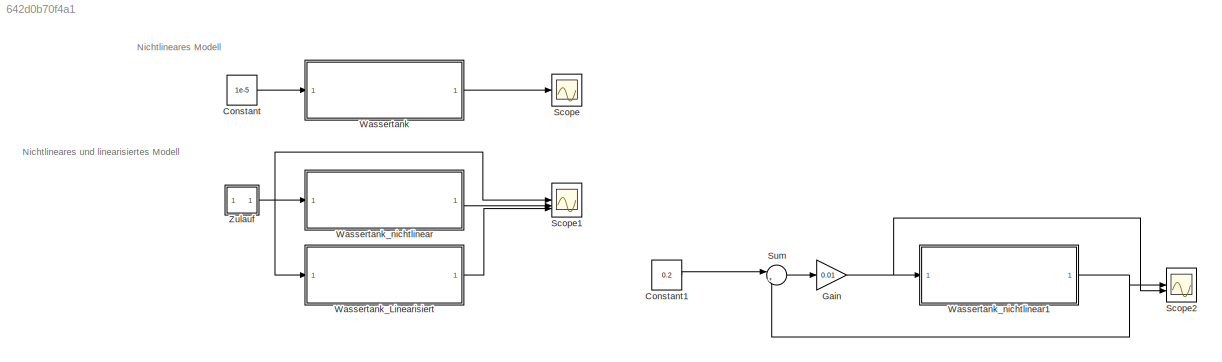
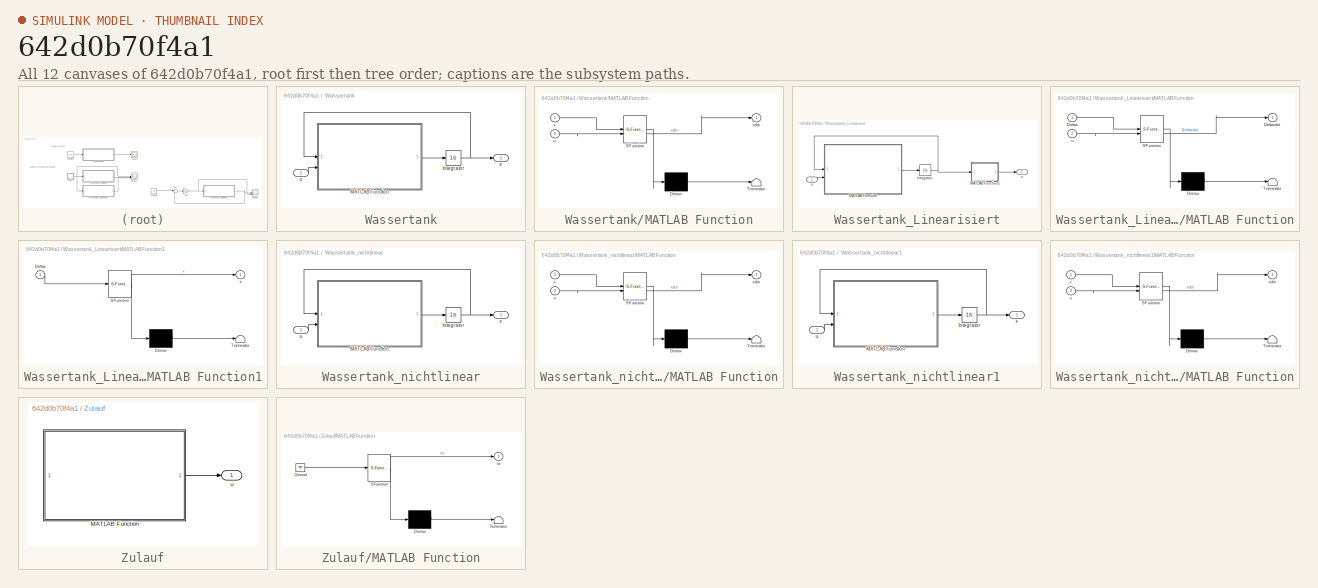
[diagram: thumbnail index - all 12 canvases of the model, root first then tree order]
MODEL slx_642d0b70f4a1
KIND model
CONFIG AbsTol = auto
CONFIG EnableMultiTasking = off
CONFIG FixedStep = auto
CONFIG MaxStep = auto
CONFIG MinStep = auto
CONFIG RelTol = 1e-3
CONFIG SampleTimeConstraint = Unconstrained
CONFIG SolverName = VariableStepAuto
CONFIG StartTime = 0.0
CONFIG StopTime = 10
BLOCK [Constant] Constant
  Value = 1e-5
BLOCK [Constant] Constant1
  Value = 0.2
BLOCK [Gain] Gain
  Gain = 0.01
BLOCK [Scope] Scope
  Floating = off
  NumInputPorts = 1
  ScopeSpecificationString = Simulink.scopes.TimeScopeBlockCfg('CurrentConfiguration', extmgr.ConfigurationSet(extmgr.Configuration('Core','General UI',true,'FigureColor',[1 1 1]),extmgr.Configuration('Core','Source UI',true),extmgr.Configuration('Sources','WiredSimulink',true),extmgr.Configuration('Visuals','Time Domain',true,'SerializedDisplays',{struct('MinYLimReal','0.09141','MaxYLimReal','0.10095','YLabelReal','','MinYLi...<+1502ch>
BLOCK [Scope] Scope1
  Floating = off
  NumInputPorts = 3
  ScopeSpecificationString = Simulink.scopes.TimeScopeBlockCfg('CurrentConfiguration', extmgr.ConfigurationSet(extmgr.Configuration('Core','General UI',true,'FigureColor',[1 1 1]),extmgr.Configuration('Core','Source UI',true),extmgr.Configuration('Sources','WiredSimulink',true,'DataLoggingVariableName','ScopeData1'),extmgr.Configuration('Visuals','Time Domain',true,'SerializedDisplays',{struct('MinYLimReal','0.00001','MaxYLim...<+2375ch>
BLOCK [Scope] Scope2
  Floating = off
  NumInputPorts = 3
  ScopeSpecificationString = Simulink.scopes.TimeScopeBlockCfg('CurrentConfiguration', extmgr.ConfigurationSet(extmgr.Configuration('Core','General UI',true,'FigureColor',[1 1 1]),extmgr.Configuration('Core','Source UI',true),extmgr.Configuration('Sources','WiredSimulink',true,'DataLoggingVariableName','ScopeData1'),extmgr.Configuration('Visuals','Time Domain',true,'SerializedDisplays',{struct('MinYLimReal','0.0875','MaxYLimR...<+2381ch>
BLOCK [Sum] Sum
  Inputs = |+-
BLOCK [SubSystem] Wassertank
BLOCK [Integrator] Wassertank/Integrator
  InitialCondition = x0
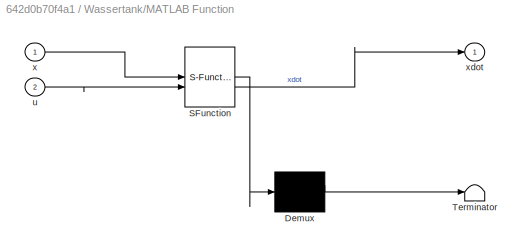
BLOCK [SubSystem] Wassertank/MATLAB Function
  ErrorFcn = Stateflow.Translate.translate
  PermitHierarchicalResolution = ExplicitOnly
  SFBlockType = MATLAB Function
  TreatAsAtomicUnit = on
BLOCK [Demux] Wassertank/MATLAB Function/ Demux 
  Outputs = 1
BLOCK [S-Function] Wassertank/MATLAB Function/ SFunction 
  EnableBusSupport = on
  FunctionName = sf_sfun
  Parameters = dA,dc
  PortCounts = [2 2]
  SFcnIsStateOwnerBlock = off
  SFunctionDeploymentMode = off
  Tag = Stateflow S-Function 2
BLOCK [Terminator] Wassertank/MATLAB Function/ Terminator 
BLOCK [Inport] Wassertank/MATLAB Function/u
  Port = 2
BLOCK [Inport] Wassertank/MATLAB Function/x
BLOCK [Outport] Wassertank/MATLAB Function/xdot
BLOCK [Inport] Wassertank/u
BLOCK [Outport] Wassertank/x
BLOCK [SubSystem] Wassertank_Linearisiert
BLOCK [Integrator] Wassertank_Linearisiert/Integrator
  InitialCondition = x0-xs
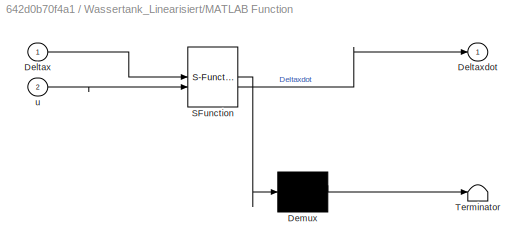
BLOCK [SubSystem] Wassertank_Linearisiert/MATLAB Function
  ErrorFcn = Stateflow.Translate.translate
  PermitHierarchicalResolution = ExplicitOnly
  SFBlockType = MATLAB Function
  TreatAsAtomicUnit = on
BLOCK [Demux] Wassertank_Linearisiert/MATLAB Function/ Demux 
  Outputs = 1
BLOCK [S-Function] Wassertank_Linearisiert/MATLAB Function/ SFunction 
  EnableBusSupport = on
  FunctionName = sf_sfun
  Parameters = dA,dc,xs
  PortCounts = [2 2]
  SFcnIsStateOwnerBlock = off
  SFunctionDeploymentMode = off
  Tag = Stateflow S-Function 4
BLOCK [Terminator] Wassertank_Linearisiert/MATLAB Function/ Terminator 
BLOCK [Inport] Wassertank_Linearisiert/MATLAB Function/Deltax
BLOCK [Outport] Wassertank_Linearisiert/MATLAB Function/Deltaxdot
BLOCK [Inport] Wassertank_Linearisiert/MATLAB Function/u
  Port = 2
BLOCK [SubSystem] Wassertank_Linearisiert/MATLAB Function1
  ErrorFcn = Stateflow.Translate.translate
  PermitHierarchicalResolution = ExplicitOnly
  SFBlockType = MATLAB Function
  TreatAsAtomicUnit = on
BLOCK [Demux] Wassertank_Linearisiert/MATLAB Function1/ Demux 
  Outputs = 1
BLOCK [S-Function] Wassertank_Linearisiert/MATLAB Function1/ SFunction 
  EnableBusSupport = on
  FunctionName = sf_sfun
  Parameters = xs
  PortCounts = [1 2]
  SFcnIsStateOwnerBlock = off
  SFunctionDeploymentMode = off
  Tag = Stateflow S-Function 5
BLOCK [Terminator] Wassertank_Linearisiert/MATLAB Function1/ Terminator 
BLOCK [Inport] Wassertank_Linearisiert/MATLAB Function1/Deltax
BLOCK [Outport] Wassertank_Linearisiert/MATLAB Function1/x
BLOCK [Inport] Wassertank_Linearisiert/u
BLOCK [Outport] Wassertank_Linearisiert/x
BLOCK [SubSystem] Wassertank_nichtlinear
BLOCK [Integrator] Wassertank_nichtlinear/Integrator
  InitialCondition = x0
BLOCK [SubSystem] Wassertank_nichtlinear/MATLAB Function
  ErrorFcn = Stateflow.Translate.translate
  PermitHierarchicalResolution = ExplicitOnly
  SFBlockType = MATLAB Function
  TreatAsAtomicUnit = on
BLOCK [Demux] Wassertank_nichtlinear/MATLAB Function/ Demux 
  Outputs = 1
BLOCK [S-Function] Wassertank_nichtlinear/MATLAB Function/ SFunction 
  EnableBusSupport = on
  FunctionName = sf_sfun
  Parameters = dA,dc
  PortCounts = [2 2]
  SFcnIsStateOwnerBlock = off
  SFunctionDeploymentMode = off
  Tag = Stateflow S-Function 1
BLOCK [Terminator] Wassertank_nichtlinear/MATLAB Function/ Terminator 
BLOCK [Inport] Wassertank_nichtlinear/MATLAB Function/u
  Port = 2
BLOCK [Inport] Wassertank_nichtlinear/MATLAB Function/x
BLOCK [Outport] Wassertank_nichtlinear/MATLAB Function/xdot
BLOCK [Inport] Wassertank_nichtlinear/u
BLOCK [Outport] Wassertank_nichtlinear/x
BLOCK [SubSystem] Wassertank_nichtlinear1
BLOCK [Integrator] Wassertank_nichtlinear1/Integrator
  InitialCondition = x0
BLOCK [SubSystem] Wassertank_nichtlinear1/MATLAB Function
  ErrorFcn = Stateflow.Translate.translate
  PermitHierarchicalResolution = ExplicitOnly
  SFBlockType = MATLAB Function
  TreatAsAtomicUnit = on
BLOCK [Demux] Wassertank_nichtlinear1/MATLAB Function/ Demux 
  Outputs = 1
BLOCK [S-Function] Wassertank_nichtlinear1/MATLAB Function/ SFunction 
  EnableBusSupport = on
  FunctionName = sf_sfun
  Parameters = dA,dc
  PortCounts = [2 2]
  SFcnIsStateOwnerBlock = off
  SFunctionDeploymentMode = off
  Tag = Stateflow S-Function 6
BLOCK [Terminator] Wassertank_nichtlinear1/MATLAB Function/ Terminator 
BLOCK [Inport] Wassertank_nichtlinear1/MATLAB Function/u
  Port = 2
BLOCK [Inport] Wassertank_nichtlinear1/MATLAB Function/x
BLOCK [Outport] Wassertank_nichtlinear1/MATLAB Function/xdot
BLOCK [Inport] Wassertank_nichtlinear1/u
BLOCK [Outport] Wassertank_nichtlinear1/x
BLOCK [SubSystem] Zulauf
BLOCK [SubSystem] Zulauf/MATLAB Function
  ErrorFcn = Stateflow.Translate.translate
  PermitHierarchicalResolution = ExplicitOnly
  SFBlockType = MATLAB Function
  TreatAsAtomicUnit = on
BLOCK [Demux] Zulauf/MATLAB Function/ Demux 
  Outputs = 1
BLOCK [Ground] Zulauf/MATLAB Function/ Ground 
BLOCK [S-Function] Zulauf/MATLAB Function/ SFunction 
  EnableBusSupport = on
  FunctionName = sf_sfun
  Parameters = dA,dc,xs
  PortCounts = [1 2]
  SFcnIsStateOwnerBlock = off
  SFunctionDeploymentMode = off
  Tag = Stateflow S-Function 3
BLOCK [Terminator] Zulauf/MATLAB Function/ Terminator 
BLOCK [Outport] Zulauf/MATLAB Function/us
BLOCK [Outport] Zulauf/u
ANNOTATION (root): Nichtlineares Modell
ANNOTATION (root): Nichtlineares und linearisiertes Modell
LINE Constant1:1 -> Sum:1
LINE Constant:1 -> Wassertank:1
NET Gain:1 -> Scope2:2, Wassertank_nichtlinear1:1
LINE Sum:1 -> Gain:1
NET Wassertank/Integrator:1 -> Wassertank/MATLAB Function:1, Wassertank/x:1
LINE Wassertank/MATLAB Function:1 -> Wassertank/Integrator:1
LINE Wassertank/u:1 -> Wassertank/MATLAB Function:2
LINE Wassertank:1 -> Scope:1
NET Wassertank_Linearisiert/Integrator:1 -> Wassertank_Linearisiert/MATLAB Function1:1, Wassertank_Linearisiert/MATLAB Function:1
LINE Wassertank_Linearisiert/MATLAB Function1:1 -> Wassertank_Linearisiert/x:1
LINE Wassertank_Linearisiert/MATLAB Function:1 -> Wassertank_Linearisiert/Integrator:1
LINE Wassertank_Linearisiert/u:1 -> Wassertank_Linearisiert/MATLAB Function:2
LINE Wassertank_Linearisiert:1 -> Scope1:3
NET Wassertank_nichtlinear/Integrator:1 -> Wassertank_nichtlinear/MATLAB Function:1, Wassertank_nichtlinear/x:1
LINE Wassertank_nichtlinear/MATLAB Function:1 -> Wassertank_nichtlinear/Integrator:1
LINE Wassertank_nichtlinear/u:1 -> Wassertank_nichtlinear/MATLAB Function:2
NET Wassertank_nichtlinear1/Integrator:1 -> Wassertank_nichtlinear1/MATLAB Function:1, Wassertank_nichtlinear1/x:1
LINE Wassertank_nichtlinear1/MATLAB Function:1 -> Wassertank_nichtlinear1/Integrator:1
LINE Wassertank_nichtlinear1/u:1 -> Wassertank_nichtlinear1/MATLAB Function:2
NET Wassertank_nichtlinear1:1 -> Scope2:1, Sum:2
LINE Wassertank_nichtlinear:1 -> Scope1:2
LINE Zulauf/MATLAB Function:1 -> Zulauf/u:1
NET Zulauf:1 -> Scope1:1, Wassertank_Linearisiert:1, Wassertank_nichtlinear:1
note: NET lines group one-source signal fan-out (src -> all destinations, sorted); 1:1 wires keep LINE
CHART Wassertank_nichtlinear/MATLAB Function states=1 transitions=1
  STATE_LABEL 'eML_blk_kernel()'
  STATE_LABEL 'SCRIPT:\nfunction xdot = fcn(x, u, dA, dc)\n% Parameter\n  g  = 9.81;       % (m/s^2) Fallbeschleunigung\n  A  = pi/4*dA^2;  % (m^2)   Behältergrundfläche\n  Ac = pi/4*dc^2; % (m^2)   Ausflussquerschnittsfläche\n% Modellparameter\n  alpha = Ac/A*sqrt(2*g);\n  beta  = 1/A;\n% Volumenstrom\n  Qdot = 0;\n  if x>=0\n    Qdot = alpha*sqrt(x);\n  end\n% Differentialgleichung\n  xdot = beta*u-Qdot;\nend\n\n'  <repeated x3 — deduplicated; at blocks: MATLAB Function>
CHART Wassertank/MATLAB Function states=1 transitions=1
  STATE_LABEL 'eML_blk_kernel()'
CHART Zulauf/MATLAB Function states=1 transitions=1
  STATE_LABEL 'eML_blk_kernel()'
  STATE_LABEL 'SCRIPT:\nfunction us = fcn(dA, dc, xs)\n% Parameter\n  g  = 9.81;       % (m/s^2) Fallbeschleunigung\n  A  = pi/4*dA^2;  % (m^2)   Behältergrundfläche\n  Ac = pi/4*dc^2; % (m^2)   Ausflussquerschnittsfläche\n% Modellparameter\n  alpha = Ac/A*sqrt(2*g);\n  beta  = 1/A;\n% Volumenstrom\n  us = alpha/beta*sqrt(xs);\nend\n\n'
CHART Wassertank_Linearisiert/MATLAB Function states=1 transitions=1
  STATE_LABEL 'eML_blk_kernel()'
  STATE_LABEL 'SCRIPT:\nfunction Deltaxdot = fcn(Deltax, u, dA, dc, xs)\n% Parameter\n  g  = 9.81;       % (m/s^2) Fallbeschleunigung\n  A  = pi/4*dA^2;  % (m^2)   Behältergrundfläche\n  Ac = pi/4*dc^2; % (m^2)   Ausflussquerschnittsfläche\n% Modellparameter\n  alpha = Ac/A*sqrt(2*g);\n  beta  = 1/A;\n% Koeffizienten der linearisierten DGL\n  a = alpha/(2*sqrt(xs));\n  b = beta;\n% Delta u\n  us = alpha/beta*sqrt(xs);\n  Delt...<+74ch>'
CHART Wassertank_Linearisiert/MATLAB Function1 states=1 transitions=1
  STATE_LABEL 'eML_blk_kernel()'
  STATE_LABEL 'SCRIPT:\nfunction x = fcn(Deltax, xs)\n  % Deltax = x-xs\n    x = Deltax+xs;\nend\n'
CHART Wassertank_nichtlinear1/MATLAB Function states=1 transitions=1
  STATE_LABEL 'eML_blk_kernel()'
CHART  states=0 transitions=0
CHART  states=0 transitions=0
CHART  states=0 transitions=0
CHART  states=0 transitions=0
CHART  states=0 transitions=0
CHART  states=0 transitions=0
